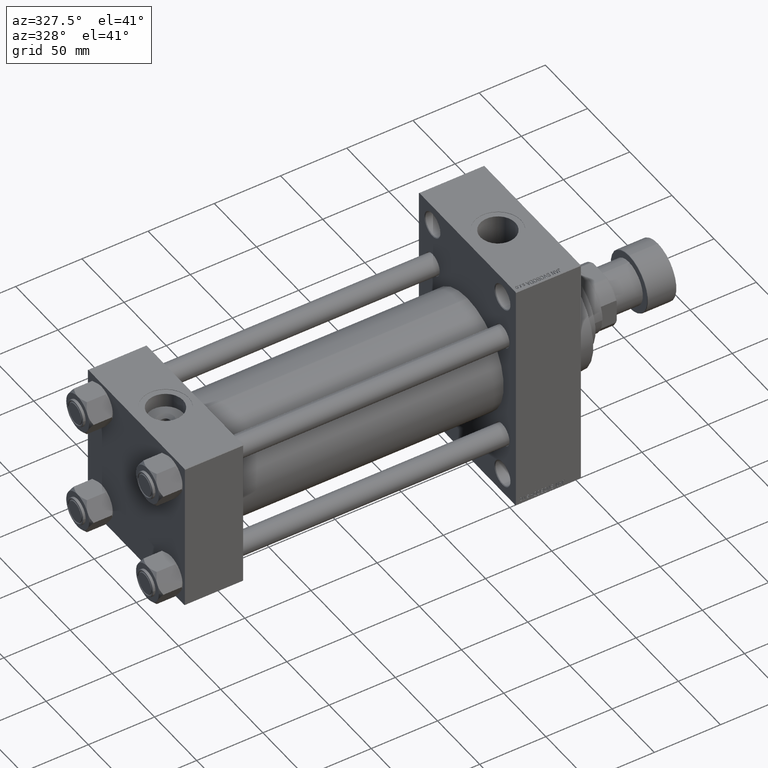
[diagram: clean part render]
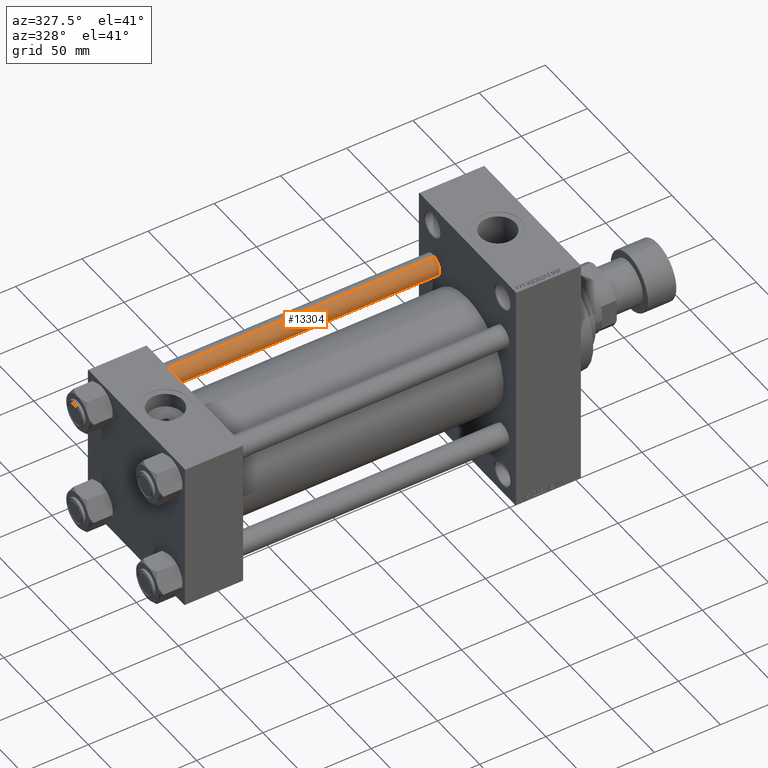
[diagram: same view with one face highlighted and labeled with its STEP entity id]
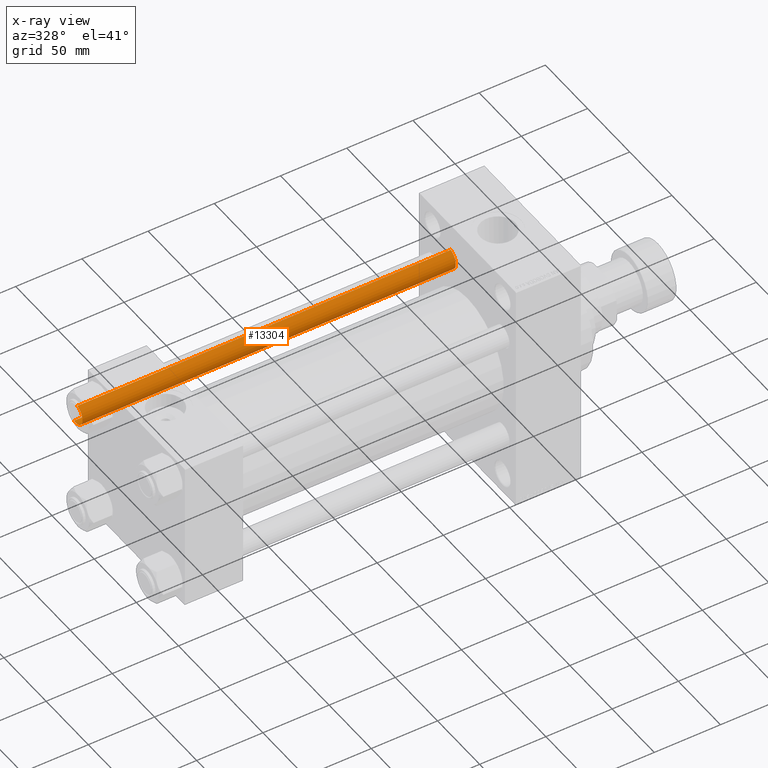
[diagram: x-ray of the same camera — body ghosted, the highlighted face saturated]
A machine part, auxiliary view. The second image highlights one B-rep face of the part: STEP entity #13304.
The next image is the same camera in x-ray: the body ghosted, the highlighted face saturated — about 0% of this face is hidden behind the body in this view.
In plain terms, the highlighted cylindrical surface (edge-blend (fillet) strip) has radius 8 mm, axis along (-1, -0, 0).
Its self-contained STEP definition (entity closure, byte-faithful):
#373 = ORIENTED_EDGE ( 'NONE', *, *, #2141, .T. ) ;
#1243 = AXIS2_PLACEMENT_3D ( 'NONE', #18755, #29513, #37540 ) ;
#2134 = CYLINDRICAL_SURFACE ( 'NONE', #1243, 8.000000000000000000 ) ;
#2141 = EDGE_CURVE ( 'NONE', #18909, #3688, #31793, .T. ) ;
#3688 = VERTEX_POINT ( 'NONE', #14905 ) ;
#5310 = LINE ( 'NONE', #30999, #41798 ) ;
#8281 = DIRECTION ( 'NONE',  ( -0.000000000000000000, -0.000000000000000000, -1.000000000000000000 ) ) ;
#9754 = VERTEX_POINT ( 'NONE', #31989 ) ;
#11725 = CARTESIAN_POINT ( 'NONE',  ( -8.000000000000000000, 0.000000000000000000, 0.5000000000000004441 ) ) ;
#13304 = ADVANCED_FACE ( 'NONE', ( #35615 ), #2134, .T. ) ;
#14905 = CARTESIAN_POINT ( 'NONE',  ( 8.000000000000000000, 9.797174393178825657E-16, 0.5000000000000004441 ) ) ;
#15439 = DIRECTION ( 'NONE',  ( 1.000000000000000000, 0.000000000000000000, 0.000000000000000000 ) ) ;
#16597 = EDGE_CURVE ( 'NONE', #45007, #18909, #5310, .T. ) ;
#18755 = CARTESIAN_POINT ( 'NONE',  ( 0.000000000000000000, 0.000000000000000000, 283.0000000000000000 ) ) ;
#18794 = LINE ( 'NONE', #34420, #25920 ) ;
#18909 = VERTEX_POINT ( 'NONE', #11725 ) ;
#21113 = CARTESIAN_POINT ( 'NONE',  ( -8.000000000000000000, 0.000000000000000000, 282.5000000000000000 ) ) ;
#21469 = ORIENTED_EDGE ( 'NONE', *, *, #24318, .T. ) ;
#23172 = DIRECTION ( 'NONE',  ( -0.000000000000000000, -0.000000000000000000, -1.000000000000000000 ) ) ;
#24318 = EDGE_CURVE ( 'NONE', #9754, #45007, #44376, .T. ) ;
#25920 = VECTOR ( 'NONE', #8281, 1000.000000000000000 ) ;
#26450 = CARTESIAN_POINT ( 'NONE',  ( 0.000000000000000000, 0.000000000000000000, 282.5000000000000000 ) ) ;
#27581 = DIRECTION ( 'NONE',  ( 1.000000000000000000, 0.000000000000000000, 0.000000000000000000 ) ) ;
#29513 = DIRECTION ( 'NONE',  ( -0.000000000000000000, -0.000000000000000000, -1.000000000000000000 ) ) ;
#30804 = ORIENTED_EDGE ( 'NONE', *, *, #16597, .T. ) ;
#30999 = CARTESIAN_POINT ( 'NONE',  ( -8.000000000000000000, 0.000000000000000000, 283.0000000000000000 ) ) ;
#31345 = EDGE_CURVE ( 'NONE', #9754, #3688, #18794, .T. ) ;
#31793 = CIRCLE ( 'NONE', #44248, 8.000000000000000000 ) ;
#31989 = CARTESIAN_POINT ( 'NONE',  ( 8.000000000000000000, 9.797174393178825657E-16, 282.5000000000000000 ) ) ;
#34013 = DIRECTION ( 'NONE',  ( 0.000000000000000000, 0.000000000000000000, -1.000000000000000000 ) ) ;
#34420 = CARTESIAN_POINT ( 'NONE',  ( 8.000000000000000000, 9.797174393178825657E-16, 283.0000000000000000 ) ) ;
#34895 = CARTESIAN_POINT ( 'NONE',  ( 0.000000000000000000, 0.000000000000000000, 0.5000000000000004441 ) ) ;
#35615 = FACE_OUTER_BOUND ( 'NONE', #44573, .T. ) ;
#35855 = DIRECTION ( 'NONE',  ( -0.000000000000000000, -0.000000000000000000, 1.000000000000000000 ) ) ;
#37540 = DIRECTION ( 'NONE',  ( -1.000000000000000000, 0.000000000000000000, 0.000000000000000000 ) ) ;
#38933 = AXIS2_PLACEMENT_3D ( 'NONE', #26450, #34013, #15439 ) ;
#41798 = VECTOR ( 'NONE', #23172, 1000.000000000000000 ) ;
#44248 = AXIS2_PLACEMENT_3D ( 'NONE', #34895, #35855, #27581 ) ;
#44376 = CIRCLE ( 'NONE', #38933, 8.000000000000000000 ) ;
#44573 = EDGE_LOOP ( 'NONE', ( #44590, #21469, #30804, #373 ) ) ;
#44590 = ORIENTED_EDGE ( 'NONE', *, *, #31345, .F. ) ;
#45007 = VERTEX_POINT ( 'NONE', #21113 ) ;